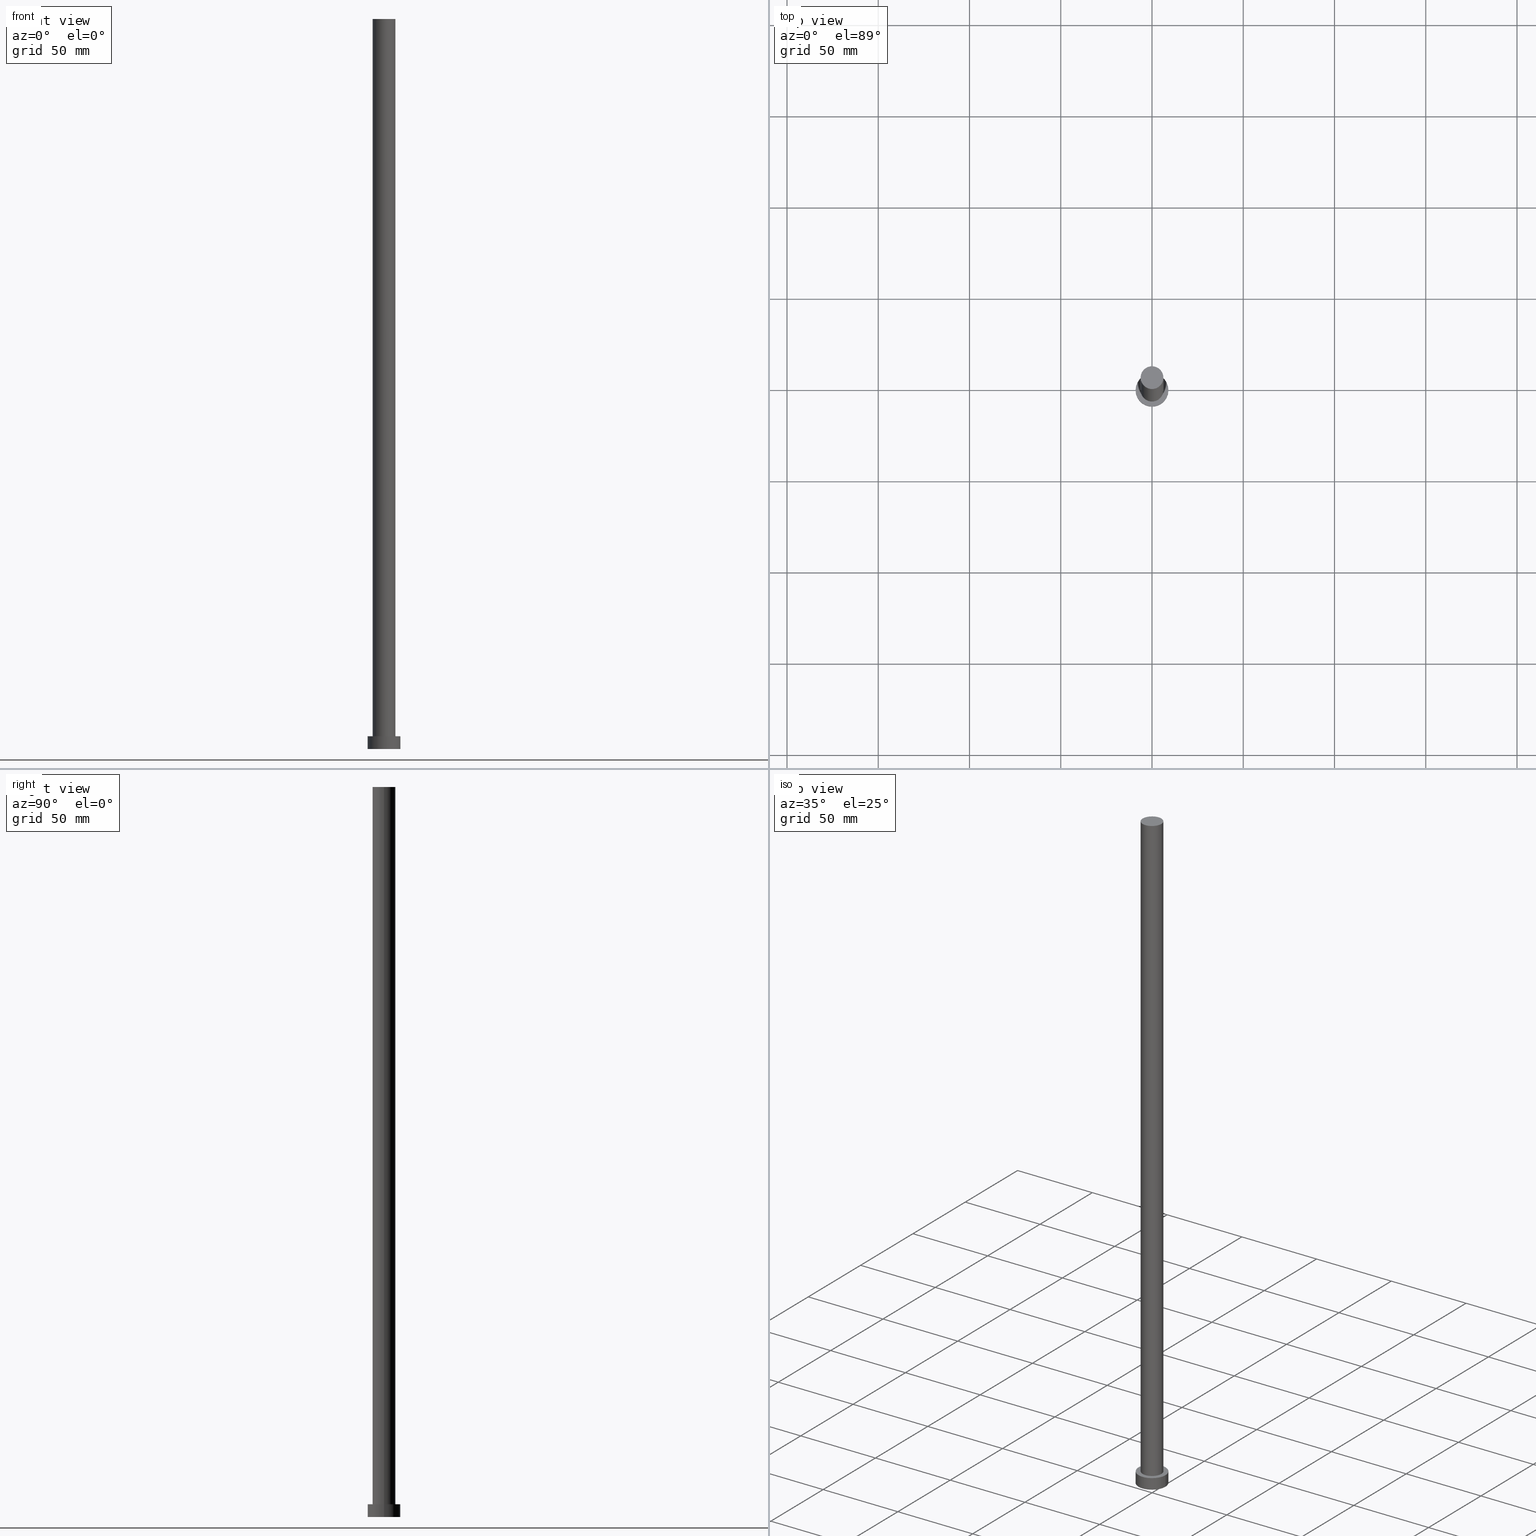
[diagram: canonical four-view strip — front | top / right | iso, engineering-drawing reading convention]
A machine part, canonical four-view strip (front | top / right | iso — engineering-drawing reading convention). The complete STEP part file that produces these views, byte-faithful:
ISO-10303-21;
HEADER;
FILE_DESCRIPTION (( 'STEP AP203' ),
    '1' );
FILE_NAME ('1816.STEP',
    '2026-02-06T12:35:50',
    ( '' ),
    ( '' ),
    'SwSTEP 2.0',
    'SolidWorks 2019',
    '' );
FILE_SCHEMA (( 'CONFIG_CONTROL_DESIGN' ));
ENDSEC;

DATA;
#1 = CALENDAR_DATE ( 2026, 6, 2 ) ;
#2 = APPROVAL_PERSON_ORGANIZATION ( #31, #211, #74 ) ;
#3 = DIRECTION ( 'NONE',  ( 0.000000000000000000, 0.000000000000000000, 1.000000000000000000 ) ) ;
#4 = CIRCLE ( 'NONE', #123, 9.000000000000000000 ) ;
#5 = CARTESIAN_POINT ( 'NONE',  ( 9.000000000000000000, 1.102182119232617714E-15, 7.000000000000000000 ) ) ;
#6 = ADVANCED_FACE ( 'NONE', ( #145 ), #9, .T. ) ;
#7 =( LENGTH_UNIT ( ) NAMED_UNIT ( * ) SI_UNIT ( .MILLI., .METRE. ) );
#8 = CARTESIAN_POINT ( 'NONE',  ( -6.250000000000000000, 0.000000000000000000, 400.0000000000000000 ) ) ;
#9 = PLANE ( 'NONE',  #198 ) ;
#10 = CARTESIAN_POINT ( 'NONE',  ( -6.250000000000000000, 0.000000000000000000, 400.0000000000000000 ) ) ;
#11 = LINE ( 'NONE', #12, #199 ) ;
#12 = CARTESIAN_POINT ( 'NONE',  ( 6.250000000000000000, 7.654042494670957606E-16, 400.0000000000000000 ) ) ;
#13 = PERSON_AND_ORGANIZATION ( #23, #33 ) ;
#14 = ORIENTED_EDGE ( 'NONE', *, *, #214, .T. ) ;
#15 = DIRECTION ( 'NONE',  ( 1.000000000000000000, 0.000000000000000000, 0.000000000000000000 ) ) ;
#16 = DATE_AND_TIME ( #152, #243 ) ;
#17 = CYLINDRICAL_SURFACE ( 'NONE', #68, 9.000000000000000000 ) ;
#18 = DIRECTION ( 'NONE',  ( 0.000000000000000000, 0.000000000000000000, 1.000000000000000000 ) ) ;
#19 = CARTESIAN_POINT ( 'NONE',  ( 0.000000000000000000, 0.000000000000000000, 7.000000000000000000 ) ) ;
#20 = APPROVAL_PERSON_ORGANIZATION ( #135, #172, #189 ) ;
#21 = EDGE_LOOP ( 'NONE', ( #84, #147, #186, #231 ) ) ;
#22 = EDGE_CURVE ( 'NONE', #153, #216, #224, .T. ) ;
#23 = PERSON ( 'NEUR�EN�', 'NEUR�EN�', 'NEUR�EN�', ('NEUR�EN�'), ('NEUR�EN�'), ('NEUR�EN�') ) ;
#24 = LINE ( 'NONE', #5, #213 ) ;
#25 = FACE_OUTER_BOUND ( 'NONE', #134, .T. ) ;
#26 = CC_DESIGN_PERSON_AND_ORGANIZATION_ASSIGNMENT ( #169, #95, ( #164 ) ) ;
#27 = LOCAL_TIME ( 13, 35, 50.00000000000000000, #51 ) ;
#28 = AXIS2_PLACEMENT_3D ( 'NONE', #141, #239, #196 ) ;
#29 = ORIENTED_EDGE ( 'NONE', *, *, #140, .T. ) ;
#30 = DIRECTION ( 'NONE',  ( 1.000000000000000000, 0.000000000000000000, 0.000000000000000000 ) ) ;
#31 = PERSON_AND_ORGANIZATION ( #23, #33 ) ;
#32 = DIRECTION ( 'NONE',  ( -1.000000000000000000, 0.000000000000000000, 0.000000000000000000 ) ) ;
#33 = ORGANIZATION ( 'NEUR�EN�', 'NEUR�EN�', '' ) ;
#34 =( NAMED_UNIT ( * ) PLANE_ANGLE_UNIT ( ) SI_UNIT ( $, .RADIAN. ) );
#35 = MECHANICAL_CONTEXT ( 'NONE', #226, 'mechanical' ) ;
#36 = LINE ( 'NONE', #10, #40 ) ;
#37 = COORDINATED_UNIVERSAL_TIME_OFFSET ( 1, 0, .AHEAD. ) ;
#38 = LOCAL_TIME ( 13, 35, 50.00000000000000000, #177 ) ;
#39 = PERSON_AND_ORGANIZATION_ROLE ( 'design_supplier' ) ;
#40 = VECTOR ( 'NONE', #168, 1000.000000000000000 ) ;
#41 = DIRECTION ( 'NONE',  ( 1.000000000000000000, 0.000000000000000000, -0.000000000000000000 ) ) ;
#42 = DIRECTION ( 'NONE',  ( 1.000000000000000000, 0.000000000000000000, 0.000000000000000000 ) ) ;
#43 = FACE_BOUND ( 'NONE', #163, .T. ) ;
#44 = CC_DESIGN_APPROVAL ( #211, ( #53 ) ) ;
#45 = ADVANCED_FACE ( 'NONE', ( #25 ), #70, .T. ) ;
#46 = ADVANCED_FACE ( 'NONE', ( #151 ), #229, .T. ) ;
#47 = LOCAL_TIME ( 13, 35, 50.00000000000000000, #109 ) ;
#48 = AXIS2_PLACEMENT_3D ( 'NONE', #108, #127, #204 ) ;
#49 = DIRECTION ( 'NONE',  ( 0.000000000000000000, 0.000000000000000000, 1.000000000000000000 ) ) ;
#50 = DIRECTION ( 'NONE',  ( 0.000000000000000000, 0.000000000000000000, 1.000000000000000000 ) ) ;
#51 = COORDINATED_UNIVERSAL_TIME_OFFSET ( 1, 0, .AHEAD. ) ;
#52 = CARTESIAN_POINT ( 'NONE',  ( 0.000000000000000000, 0.000000000000000000, 400.0000000000000000 ) ) ;
#53 = SECURITY_CLASSIFICATION ( '', '', #75 ) ;
#54 = DATE_AND_TIME ( #132, #218 ) ;
#55 = DIRECTION ( 'NONE',  ( 0.000000000000000000, 0.000000000000000000, 1.000000000000000000 ) ) ;
#56 = CC_DESIGN_PERSON_AND_ORGANIZATION_ASSIGNMENT ( #230, #252, ( #53 ) ) ;
#57 = ORIENTED_EDGE ( 'NONE', *, *, #22, .F. ) ;
#58 = AXIS2_PLACEMENT_3D ( 'NONE', #159, #238, #156 ) ;
#59 = ORIENTED_EDGE ( 'NONE', *, *, #244, .T. ) ;
#60 = CARTESIAN_POINT ( 'NONE',  ( -9.000000000000000000, 0.000000000000000000, 7.000000000000000000 ) ) ;
#61 = CLOSED_SHELL ( 'NONE', ( #46, #98, #255, #115, #121, #45, #6 ) ) ;
#62 = APPLICATION_CONTEXT ( 'configuration controlled 3d designs of mechanical parts and assemblies' ) ;
#63 = CIRCLE ( 'NONE', #28, 6.250000000000000000 ) ;
#64 = EDGE_LOOP ( 'NONE', ( #192, #59 ) ) ;
#65 = UNCERTAINTY_MEASURE_WITH_UNIT (LENGTH_MEASURE( 1.000000000000000082E-05 ), #7, 'distance_accuracy_value', 'NONE');
#66 = CARTESIAN_POINT ( 'NONE',  ( 9.000000000000000000, 1.102182119232617714E-15, 0.000000000000000000 ) ) ;
#67 = CARTESIAN_POINT ( 'NONE',  ( -9.000000000000000000, 0.000000000000000000, 0.000000000000000000 ) ) ;
#68 = AXIS2_PLACEMENT_3D ( 'NONE', #118, #99, #178 ) ;
#69 = DIRECTION ( 'NONE',  ( 1.000000000000000000, 0.000000000000000000, 0.000000000000000000 ) ) ;
#70 = CYLINDRICAL_SURFACE ( 'NONE', #241, 6.250000000000000000 ) ;
#71 = PERSON_AND_ORGANIZATION_ROLE ( 'design_owner' ) ;
#72 = PERSON_AND_ORGANIZATION ( #23, #33 ) ;
#73 = VERTEX_POINT ( 'NONE', #110 ) ;
#74 = APPROVAL_ROLE ( '' ) ;
#75 = SECURITY_CLASSIFICATION_LEVEL ( 'unclassified' ) ;
#76 = VERTEX_POINT ( 'NONE', #170 ) ;
#77 = PLANE ( 'NONE',  #58 ) ;
#78 = PLANE ( 'NONE',  #142 ) ;
#79 = DIRECTION ( 'NONE',  ( 1.000000000000000000, 0.000000000000000000, 0.000000000000000000 ) ) ;
#80 = CARTESIAN_POINT ( 'NONE',  ( -9.000000000000000000, 0.000000000000000000, 7.000000000000000000 ) ) ;
#81 = PRODUCT_DEFINITION_SHAPE ( 'NONE', 'NONE',  #164 ) ;
#82 = CIRCLE ( 'NONE', #175, 6.250000000000000000 ) ;
#83 = ORIENTED_EDGE ( 'NONE', *, *, #187, .T. ) ;
#84 = ORIENTED_EDGE ( 'NONE', *, *, #187, .F. ) ;
#85 = DIRECTION ( 'NONE',  ( 0.000000000000000000, 0.000000000000000000, 1.000000000000000000 ) ) ;
#86 = CARTESIAN_POINT ( 'NONE',  ( 0.000000000000000000, 0.000000000000000000, 0.000000000000000000 ) ) ;
#87 = EDGE_CURVE ( 'NONE', #131, #73, #36, .T. ) ;
#88 = DIRECTION ( 'NONE',  ( 0.000000000000000000, 0.000000000000000000, 1.000000000000000000 ) ) ;
#89 = CARTESIAN_POINT ( 'NONE',  ( 0.000000000000000000, 0.000000000000000000, 0.000000000000000000 ) ) ;
#90 = CC_DESIGN_PERSON_AND_ORGANIZATION_ASSIGNMENT ( #232, #71, ( #161 ) ) ;
#91 = CIRCLE ( 'NONE', #183, 9.000000000000000000 ) ;
#92 = APPROVAL_DATE_TIME ( #96, #234 ) ;
#93 = EDGE_CURVE ( 'NONE', #144, #73, #82, .T. ) ;
#94 = CARTESIAN_POINT ( 'NONE',  ( 0.000000000000000000, 0.000000000000000000, 400.0000000000000000 ) ) ;
#95 = PERSON_AND_ORGANIZATION_ROLE ( 'creator' ) ;
#96 = DATE_AND_TIME ( #1, #38 ) ;
#97 = PERSON_AND_ORGANIZATION ( #23, #33 ) ;
#98 = ADVANCED_FACE ( 'NONE', ( #193 ), #17, .T. ) ;
#99 = DIRECTION ( 'NONE',  ( -0.000000000000000000, -0.000000000000000000, -1.000000000000000000 ) ) ;
#100 = CARTESIAN_POINT ( 'NONE',  ( 0.000000000000000000, 0.000000000000000000, 7.000000000000000000 ) ) ;
#101 = VERTEX_POINT ( 'NONE', #80 ) ;
#102 = EDGE_CURVE ( 'NONE', #101, #216, #158, .T. ) ;
#103 = CC_DESIGN_APPROVAL ( #172, ( #182 ) ) ;
#104 = AXIS2_PLACEMENT_3D ( 'NONE', #89, #49, #124 ) ;
#105 = AXIS2_PLACEMENT_3D ( 'NONE', #52, #130, #32 ) ;
#106 = CC_DESIGN_PERSON_AND_ORGANIZATION_ASSIGNMENT ( #97, #173, ( #182 ) ) ;
#107 = ORIENTED_EDGE ( 'NONE', *, *, #233, .T. ) ;
#108 = CARTESIAN_POINT ( 'NONE',  ( 0.000000000000000000, 0.000000000000000000, 7.000000000000000000 ) ) ;
#109 = COORDINATED_UNIVERSAL_TIME_OFFSET ( 1, 0, .AHEAD. ) ;
#110 = CARTESIAN_POINT ( 'NONE',  ( -6.250000000000000000, 0.000000000000000000, 7.000000000000000000 ) ) ;
#111 = CARTESIAN_POINT ( 'NONE',  ( 6.250000000000000000, 7.654042494670957606E-16, 400.0000000000000000 ) ) ;
#112 = CARTESIAN_POINT ( 'NONE',  ( 0.000000000000000000, 0.000000000000000000, 0.000000000000000000 ) ) ;
#113 = APPROVAL_ROLE ( '' ) ;
#114 = VECTOR ( 'NONE', #217, 1000.000000000000000 ) ;
#115 = ADVANCED_FACE ( 'NONE', ( #43, #195 ), #78, .T. ) ;
#116 = APPROVAL_DATE_TIME ( #54, #211 ) ;
#117 = FACE_OUTER_BOUND ( 'NONE', #181, .T. ) ;
#118 = CARTESIAN_POINT ( 'NONE',  ( 0.000000000000000000, 0.000000000000000000, 7.000000000000000000 ) ) ;
#119 = CARTESIAN_POINT ( 'NONE',  ( 0.000000000000000000, 0.000000000000000000, 7.000000000000000000 ) ) ;
#120 = ORIENTED_EDGE ( 'NONE', *, *, #184, .F. ) ;
#121 = ADVANCED_FACE ( 'NONE', ( #117 ), #77, .F. ) ;
#122 = APPROVAL_PERSON_ORGANIZATION ( #13, #234, #113 ) ;
#123 = AXIS2_PLACEMENT_3D ( 'NONE', #19, #3, #79 ) ;
#124 = DIRECTION ( 'NONE',  ( 1.000000000000000000, 0.000000000000000000, 0.000000000000000000 ) ) ;
#125 = ORIENTED_EDGE ( 'NONE', *, *, #136, .T. ) ;
#126 = CIRCLE ( 'NONE', #235, 6.250000000000000000 ) ;
#127 = DIRECTION ( 'NONE',  ( -0.000000000000000000, -0.000000000000000000, -1.000000000000000000 ) ) ;
#128 = ADVANCED_BREP_SHAPE_REPRESENTATION ( '1816', ( #221, #240 ), #162 ) ;
#129 = APPLICATION_PROTOCOL_DEFINITION ( 'international standard', 'config_control_design', 1994, #226 ) ;
#130 = DIRECTION ( 'NONE',  ( -0.000000000000000000, -0.000000000000000000, -1.000000000000000000 ) ) ;
#131 = VERTEX_POINT ( 'NONE', #8 ) ;
#132 = CALENDAR_DATE ( 2026, 6, 2 ) ;
#133 = DIRECTION ( 'NONE',  ( -0.000000000000000000, -0.000000000000000000, -1.000000000000000000 ) ) ;
#134 = EDGE_LOOP ( 'NONE', ( #179, #120, #209, #107 ) ) ;
#135 = PERSON_AND_ORGANIZATION ( #23, #33 ) ;
#136 = EDGE_CURVE ( 'NONE', #216, #153, #148, .T. ) ;
#137 = VERTEX_POINT ( 'NONE', #111 ) ;
#138 = COORDINATED_UNIVERSAL_TIME_OFFSET ( 1, 0, .AHEAD. ) ;
#139 = ORIENTED_EDGE ( 'NONE', *, *, #87, .F. ) ;
#140 = EDGE_CURVE ( 'NONE', #137, #144, #11, .T. ) ;
#141 = CARTESIAN_POINT ( 'NONE',  ( 0.000000000000000000, 0.000000000000000000, 400.0000000000000000 ) ) ;
#142 = AXIS2_PLACEMENT_3D ( 'NONE', #160, #18, #41 ) ;
#143 = CC_DESIGN_DATE_AND_TIME_ASSIGNMENT ( #176, #150, ( #53 ) ) ;
#144 = VERTEX_POINT ( 'NONE', #219 ) ;
#145 = FACE_OUTER_BOUND ( 'NONE', #64, .T. ) ;
#146 = DIRECTION ( 'NONE',  ( -0.000000000000000000, -0.000000000000000000, -1.000000000000000000 ) ) ;
#147 = ORIENTED_EDGE ( 'NONE', *, *, #223, .T. ) ;
#148 = CIRCLE ( 'NONE', #253, 9.000000000000000000 ) ;
#149 = APPROVAL_STATUS ( 'not_yet_approved' ) ;
#150 = DATE_TIME_ROLE ( 'classification_date' ) ;
#151 = FACE_OUTER_BOUND ( 'NONE', #165, .T. ) ;
#152 = CALENDAR_DATE ( 2026, 6, 2 ) ;
#153 = VERTEX_POINT ( 'NONE', #66 ) ;
#154 = CALENDAR_DATE ( 2026, 6, 2 ) ;
#155 = ORIENTED_EDGE ( 'NONE', *, *, #93, .T. ) ;
#156 = DIRECTION ( 'NONE',  ( 1.000000000000000000, 0.000000000000000000, -0.000000000000000000 ) ) ;
#157 = ORIENTED_EDGE ( 'NONE', *, *, #214, .F. ) ;
#158 = LINE ( 'NONE', #60, #114 ) ;
#159 = CARTESIAN_POINT ( 'NONE',  ( 0.000000000000000000, 0.000000000000000000, 0.000000000000000000 ) ) ;
#160 = CARTESIAN_POINT ( 'NONE',  ( 0.000000000000000000, 0.000000000000000000, 7.000000000000000000 ) ) ;
#161 = PRODUCT ( '1816', '1816', '', ( #35 ) ) ;
#162 =( GEOMETRIC_REPRESENTATION_CONTEXT ( 3 ) GLOBAL_UNCERTAINTY_ASSIGNED_CONTEXT ( ( #65 ) ) GLOBAL_UNIT_ASSIGNED_CONTEXT ( ( #7, #34, #171 ) ) REPRESENTATION_CONTEXT ( 'NONE', 'WORKASPACE' ) );
#163 = EDGE_LOOP ( 'NONE', ( #212, #200 ) ) ;
#164 = PRODUCT_DEFINITION ( 'NEZN�M�', '', #182, #220 ) ;
#165 = EDGE_LOOP ( 'NONE', ( #207, #29, #155, #139 ) ) ;
#166 = PRODUCT_RELATED_PRODUCT_CATEGORY ( 'detail', '', ( #161 ) ) ;
#167 = ORIENTED_EDGE ( 'NONE', *, *, #102, .T. ) ;
#168 = DIRECTION ( 'NONE',  ( -0.000000000000000000, -0.000000000000000000, -1.000000000000000000 ) ) ;
#169 = PERSON_AND_ORGANIZATION ( #23, #33 ) ;
#170 = CARTESIAN_POINT ( 'NONE',  ( 9.000000000000000000, 1.102182119232617714E-15, 7.000000000000000000 ) ) ;
#171 =( NAMED_UNIT ( * ) SI_UNIT ( $, .STERADIAN. ) SOLID_ANGLE_UNIT ( ) );
#172 = APPROVAL ( #251, 'NEUR�EN�' ) ;
#173 = PERSON_AND_ORGANIZATION_ROLE ( 'creator' ) ;
#174 = CC_DESIGN_APPROVAL ( #234, ( #164 ) ) ;
#175 = AXIS2_PLACEMENT_3D ( 'NONE', #119, #190, #237 ) ;
#176 = DATE_AND_TIME ( #154, #47 ) ;
#177 = COORDINATED_UNIVERSAL_TIME_OFFSET ( 1, 0, .AHEAD. ) ;
#178 = DIRECTION ( 'NONE',  ( -1.000000000000000000, 0.000000000000000000, 0.000000000000000000 ) ) ;
#179 = ORIENTED_EDGE ( 'NONE', *, *, #140, .F. ) ;
#180 = CC_DESIGN_PERSON_AND_ORGANIZATION_ASSIGNMENT ( #72, #39, ( #182 ) ) ;
#181 = EDGE_LOOP ( 'NONE', ( #250, #57 ) ) ;
#182 = PRODUCT_DEFINITION_FORMATION_WITH_SPECIFIED_SOURCE ( 'LIBOVOLN�', '', #161, .NOT_KNOWN. ) ;
#183 = AXIS2_PLACEMENT_3D ( 'NONE', #100, #215, #42 ) ;
#184 = EDGE_CURVE ( 'NONE', #131, #137, #63, .T. ) ;
#185 = CARTESIAN_POINT ( 'NONE',  ( 0.000000000000000000, 0.000000000000000000, 7.000000000000000000 ) ) ;
#186 = ORIENTED_EDGE ( 'NONE', *, *, #22, .T. ) ;
#187 = EDGE_CURVE ( 'NONE', #76, #101, #4, .T. ) ;
#188 = CC_DESIGN_SECURITY_CLASSIFICATION ( #53, ( #182 ) ) ;
#189 = APPROVAL_ROLE ( '' ) ;
#190 = DIRECTION ( 'NONE',  ( 0.000000000000000000, 0.000000000000000000, 1.000000000000000000 ) ) ;
#191 = SHAPE_DEFINITION_REPRESENTATION ( #81, #128 ) ;
#192 = ORIENTED_EDGE ( 'NONE', *, *, #184, .T. ) ;
#193 = FACE_OUTER_BOUND ( 'NONE', #21, .T. ) ;
#194 = ORIENTED_EDGE ( 'NONE', *, *, #223, .F. ) ;
#195 = FACE_OUTER_BOUND ( 'NONE', #236, .T. ) ;
#196 = DIRECTION ( 'NONE',  ( 1.000000000000000000, 0.000000000000000000, 0.000000000000000000 ) ) ;
#197 = CC_DESIGN_DATE_AND_TIME_ASSIGNMENT ( #16, #210, ( #164 ) ) ;
#198 = AXIS2_PLACEMENT_3D ( 'NONE', #203, #50, #242 ) ;
#199 = VECTOR ( 'NONE', #247, 1000.000000000000000 ) ;
#200 = ORIENTED_EDGE ( 'NONE', *, *, #93, .F. ) ;
#201 = AXIS2_PLACEMENT_3D ( 'NONE', #185, #85, #245 ) ;
#202 = CARTESIAN_POINT ( 'NONE',  ( 0.000000000000000000, 0.000000000000000000, 400.0000000000000000 ) ) ;
#203 = CARTESIAN_POINT ( 'NONE',  ( 0.000000000000000000, 0.000000000000000000, 400.0000000000000000 ) ) ;
#204 = DIRECTION ( 'NONE',  ( -1.000000000000000000, 0.000000000000000000, 0.000000000000000000 ) ) ;
#205 = DIRECTION ( 'NONE',  ( 0.000000000000000000, 0.000000000000000000, 1.000000000000000000 ) ) ;
#206 = DATE_AND_TIME ( #208, #27 ) ;
#207 = ORIENTED_EDGE ( 'NONE', *, *, #244, .F. ) ;
#208 = CALENDAR_DATE ( 2026, 6, 2 ) ;
#209 = ORIENTED_EDGE ( 'NONE', *, *, #87, .T. ) ;
#210 = DATE_TIME_ROLE ( 'creation_date' ) ;
#211 = APPROVAL ( #254, 'NEUR�EN�' ) ;
#212 = ORIENTED_EDGE ( 'NONE', *, *, #233, .F. ) ;
#213 = VECTOR ( 'NONE', #146, 1000.000000000000000 ) ;
#214 = EDGE_CURVE ( 'NONE', #101, #76, #91, .T. ) ;
#215 = DIRECTION ( 'NONE',  ( 0.000000000000000000, 0.000000000000000000, 1.000000000000000000 ) ) ;
#216 = VERTEX_POINT ( 'NONE', #67 ) ;
#217 = DIRECTION ( 'NONE',  ( -0.000000000000000000, -0.000000000000000000, -1.000000000000000000 ) ) ;
#218 = LOCAL_TIME ( 13, 35, 50.00000000000000000, #138 ) ;
#219 = CARTESIAN_POINT ( 'NONE',  ( 6.250000000000000000, 7.654042494670957606E-16, 7.000000000000000000 ) ) ;
#220 = DESIGN_CONTEXT ( 'detailed design', #62, 'design' ) ;
#221 = MANIFOLD_SOLID_BREP ( 'P�idat vysunut�m3', #61 ) ;
#222 = EDGE_LOOP ( 'NONE', ( #194, #157, #167, #125 ) ) ;
#223 = EDGE_CURVE ( 'NONE', #76, #153, #24, .T. ) ;
#224 = CIRCLE ( 'NONE', #104, 9.000000000000000000 ) ;
#225 = FACE_OUTER_BOUND ( 'NONE', #222, .T. ) ;
#226 = APPLICATION_CONTEXT ( 'configuration controlled 3d designs of mechanical parts and assemblies' ) ;
#227 = APPLICATION_PROTOCOL_DEFINITION ( 'international standard', 'config_control_design', 1994, #62 ) ;
#228 = APPROVAL_DATE_TIME ( #206, #172 ) ;
#229 = CYLINDRICAL_SURFACE ( 'NONE', #105, 6.250000000000000000 ) ;
#230 = PERSON_AND_ORGANIZATION ( #23, #33 ) ;
#231 = ORIENTED_EDGE ( 'NONE', *, *, #102, .F. ) ;
#232 = PERSON_AND_ORGANIZATION ( #23, #33 ) ;
#233 = EDGE_CURVE ( 'NONE', #73, #144, #248, .T. ) ;
#234 = APPROVAL ( #149, 'NEUR�EN�' ) ;
#235 = AXIS2_PLACEMENT_3D ( 'NONE', #202, #88, #69 ) ;
#236 = EDGE_LOOP ( 'NONE', ( #14, #83 ) ) ;
#237 = DIRECTION ( 'NONE',  ( 1.000000000000000000, 0.000000000000000000, 0.000000000000000000 ) ) ;
#238 = DIRECTION ( 'NONE',  ( 0.000000000000000000, 0.000000000000000000, 1.000000000000000000 ) ) ;
#239 = DIRECTION ( 'NONE',  ( 0.000000000000000000, 0.000000000000000000, 1.000000000000000000 ) ) ;
#240 = AXIS2_PLACEMENT_3D ( 'NONE', #112, #55, #15 ) ;
#241 = AXIS2_PLACEMENT_3D ( 'NONE', #94, #133, #249 ) ;
#242 = DIRECTION ( 'NONE',  ( 1.000000000000000000, 0.000000000000000000, -0.000000000000000000 ) ) ;
#243 = LOCAL_TIME ( 13, 35, 50.00000000000000000, #37 ) ;
#244 = EDGE_CURVE ( 'NONE', #137, #131, #126, .T. ) ;
#245 = DIRECTION ( 'NONE',  ( 1.000000000000000000, 0.000000000000000000, 0.000000000000000000 ) ) ;
#246 = CYLINDRICAL_SURFACE ( 'NONE', #48, 9.000000000000000000 ) ;
#247 = DIRECTION ( 'NONE',  ( -0.000000000000000000, -0.000000000000000000, -1.000000000000000000 ) ) ;
#248 = CIRCLE ( 'NONE', #201, 6.250000000000000000 ) ;
#249 = DIRECTION ( 'NONE',  ( -1.000000000000000000, 0.000000000000000000, 0.000000000000000000 ) ) ;
#250 = ORIENTED_EDGE ( 'NONE', *, *, #136, .F. ) ;
#251 = APPROVAL_STATUS ( 'not_yet_approved' ) ;
#252 = PERSON_AND_ORGANIZATION_ROLE ( 'classification_officer' ) ;
#253 = AXIS2_PLACEMENT_3D ( 'NONE', #86, #205, #30 ) ;
#254 = APPROVAL_STATUS ( 'not_yet_approved' ) ;
#255 = ADVANCED_FACE ( 'NONE', ( #225 ), #246, .T. ) ;
ENDSEC;
END-ISO-10303-21;
